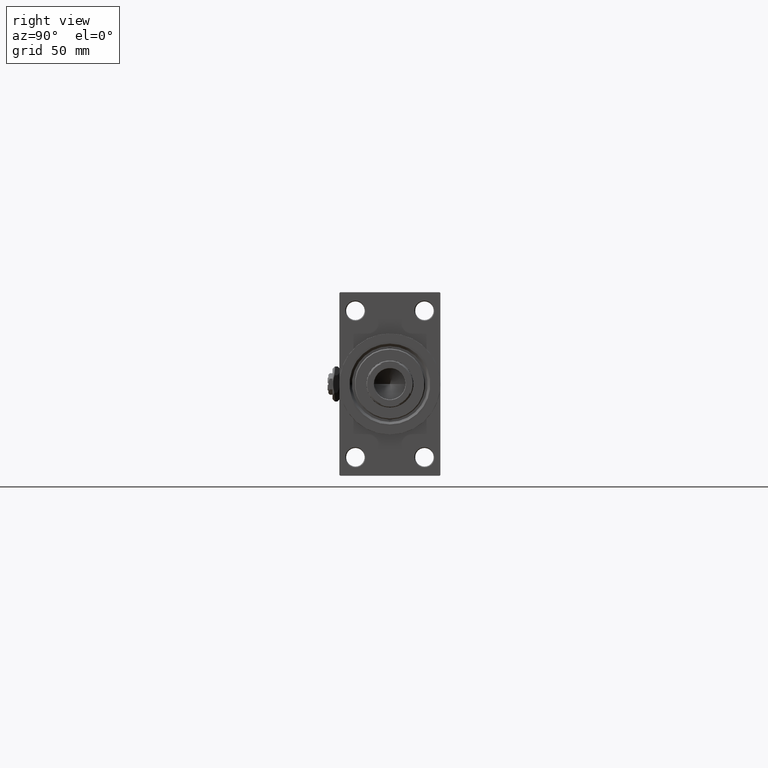
[diagram: clean part render]
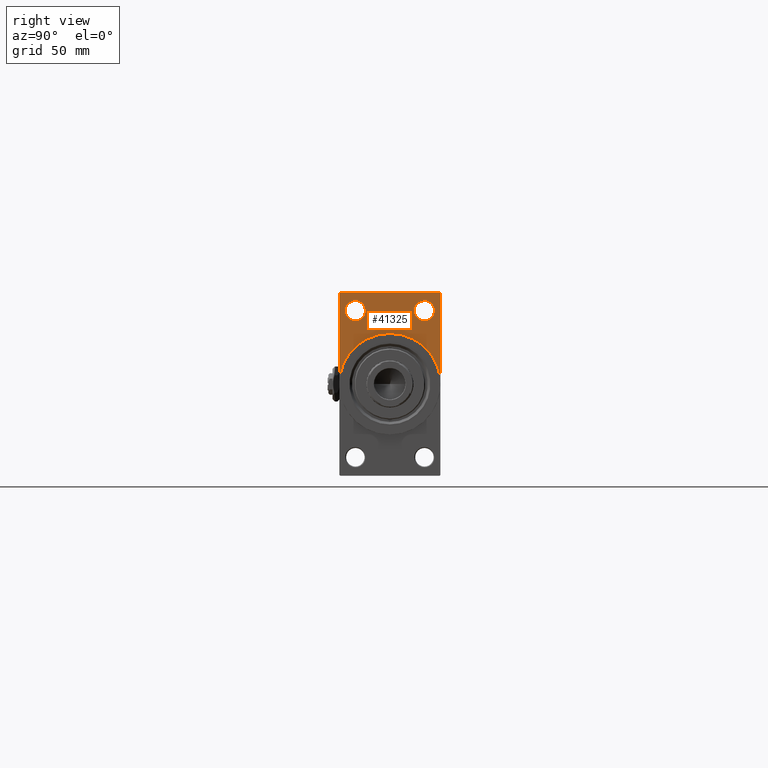
[diagram: same view with one face highlighted and labeled with its STEP entity id]
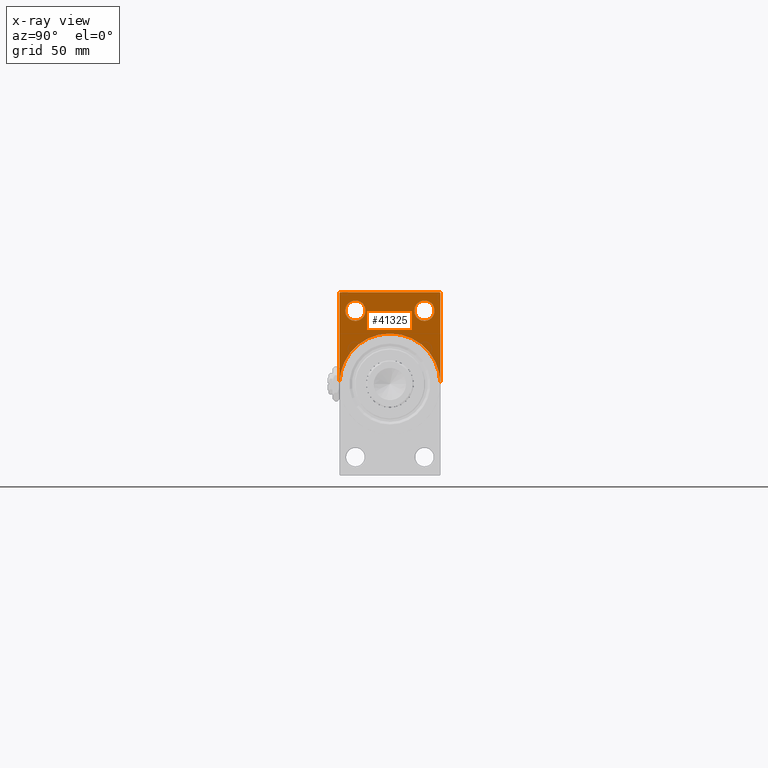
[diagram: x-ray of the same camera — body ghosted, the highlighted face saturated]
A machine part, right view. The second image highlights one B-rep face of the part: STEP entity #41325.
The next image is the same camera in x-ray: the body ghosted, the highlighted face saturated — about 0% of this face is hidden behind the body in this view.
In plain terms, the highlighted planar face has unit normal (-1, 0, 0).
Its self-contained STEP definition (entity closure, byte-faithful):
#342 = EDGE_CURVE ( 'NONE', #9525, #22201, #31948, .T. ) ;
#1118 = CARTESIAN_POINT ( 'NONE',  ( 367.9999999999999432, 0.000000000000000000, 0.000000000000000000 ) ) ;
#1385 = FACE_OUTER_BOUND ( 'NONE', #25868, .T. ) ;
#1732 = ORIENTED_EDGE ( 'NONE', *, *, #43860, .F. ) ;
#2413 = EDGE_CURVE ( 'NONE', #20217, #9525, #42579, .T. ) ;
#3683 = ORIENTED_EDGE ( 'NONE', *, *, #41834, .T. ) ;
#3729 = CARTESIAN_POINT ( 'NONE',  ( 367.9999999999999432, 29.99999999999999645, 54.49999999999999289 ) ) ;
#4058 = DIRECTION ( 'NONE',  ( 0.000000000000000000, 0.000000000000000000, -1.000000000000000000 ) ) ;
#4507 = CARTESIAN_POINT ( 'NONE',  ( 367.9999999999999432, 29.50000000000004974, 54.49999999999999289 ) ) ;
#4517 = CIRCLE ( 'NONE', #19607, 30.00000000000000000 ) ;
#5088 = CIRCLE ( 'NONE', #32915, 6.000000000000005329 ) ;
#6148 = AXIS2_PLACEMENT_3D ( 'NONE', #8846, #42985, #9571 ) ;
#6544 = EDGE_LOOP ( 'NONE', ( #16864, #22720 ) ) ;
#7142 = ORIENTED_EDGE ( 'NONE', *, *, #342, .T. ) ;
#7536 = DIRECTION ( 'NONE',  ( 0.000000000000000000, 0.000000000000000000, 1.000000000000000000 ) ) ;
#7552 = CARTESIAN_POINT ( 'NONE',  ( 367.9999999999999432, 0.000000000000000000, 0.000000000000000000 ) ) ;
#8109 = CARTESIAN_POINT ( 'NONE',  ( 367.9999999999999432, 0.000000000000000000, 30.00000000000000000 ) ) ;
#8546 = DIRECTION ( 'NONE',  ( 1.000000000000000000, 0.000000000000000000, 0.000000000000000000 ) ) ;
#8846 = CARTESIAN_POINT ( 'NONE',  ( 367.9999999999999432, 0.000000000000000000, 0.000000000000000000 ) ) ;
#9525 = VERTEX_POINT ( 'NONE', #34480 ) ;
#9571 = DIRECTION ( 'NONE',  ( -0.000000000000000000, 0.000000000000000000, 1.000000000000000000 ) ) ;
#9925 = ORIENTED_EDGE ( 'NONE', *, *, #20345, .T. ) ;
#11666 = VECTOR ( 'NONE', #20355, 1000.000000000000000 ) ;
#11897 = CARTESIAN_POINT ( 'NONE',  ( 367.9999999999999432, 29.50000000000004974, 54.49999999999999289 ) ) ;
#12025 = LINE ( 'NONE', #27225, #45605 ) ;
#12047 = DIRECTION ( 'NONE',  ( 0.000000000000000000, 0.000000000000000000, -1.000000000000000000 ) ) ;
#12698 = DIRECTION ( 'NONE',  ( 0.000000000000000000, 0.000000000000000000, 1.000000000000000000 ) ) ;
#12891 = AXIS2_PLACEMENT_3D ( 'NONE', #7552, #8546, #23240 ) ;
#13004 = CARTESIAN_POINT ( 'NONE',  ( 367.9999999999999432, -30.00000000000000000, 53.99999999999988631 ) ) ;
#13542 = AXIS2_PLACEMENT_3D ( 'NONE', #37138, #22666, #15193 ) ;
#15193 = DIRECTION ( 'NONE',  ( 0.000000000000000000, 0.000000000000000000, 1.000000000000000000 ) ) ;
#15498 = CARTESIAN_POINT ( 'NONE',  ( 367.9999999999999432, -30.00000000000000000, 54.50000000000000000 ) ) ;
#16130 = EDGE_CURVE ( 'NONE', #32096, #31419, #46110, .T. ) ;
#16263 = EDGE_CURVE ( 'NONE', #22201, #39570, #45646, .T. ) ;
#16486 = ORIENTED_EDGE ( 'NONE', *, *, #16130, .T. ) ;
#16864 = ORIENTED_EDGE ( 'NONE', *, *, #23936, .T. ) ;
#18015 = DIRECTION ( 'NONE',  ( -1.000000000000000000, 0.000000000000000000, -0.000000000000000000 ) ) ;
#18675 = ORIENTED_EDGE ( 'NONE', *, *, #47679, .F. ) ;
#19018 = ORIENTED_EDGE ( 'NONE', *, *, #27725, .F. ) ;
#19607 = AXIS2_PLACEMENT_3D ( 'NONE', #1118, #23773, #12047 ) ;
#19824 = CARTESIAN_POINT ( 'NONE',  ( 367.9999999999999432, 20.50000000000000000, 43.50000000000000000 ) ) ;
#20217 = VERTEX_POINT ( 'NONE', #4507 ) ;
#20345 = EDGE_CURVE ( 'NONE', #31419, #32096, #49249, .T. ) ;
#20355 = DIRECTION ( 'NONE',  ( 0.000000000000000000, -0.7071067811865081598, 0.7071067811865868746 ) ) ;
#22201 = VERTEX_POINT ( 'NONE', #47152 ) ;
#22429 = CIRCLE ( 'NONE', #12891, 30.00000000000000000 ) ;
#22666 = DIRECTION ( 'NONE',  ( -1.000000000000000000, 0.000000000000000000, -0.000000000000000000 ) ) ;
#22720 = ORIENTED_EDGE ( 'NONE', *, *, #34970, .T. ) ;
#23240 = DIRECTION ( 'NONE',  ( 0.000000000000000000, 0.000000000000000000, -1.000000000000000000 ) ) ;
#23448 = CARTESIAN_POINT ( 'NONE',  ( 367.9999999999999432, 29.99999999999999645, 53.99999999999999289 ) ) ;
#23773 = DIRECTION ( 'NONE',  ( 1.000000000000000000, 0.000000000000000000, 0.000000000000000000 ) ) ;
#23936 = EDGE_CURVE ( 'NONE', #39065, #38532, #35020, .T. ) ;
#24160 = CARTESIAN_POINT ( 'NONE',  ( 367.9999999999999432, -20.50000000000000000, 43.50000000000000000 ) ) ;
#24767 = PLANE ( 'NONE',  #6148 ) ;
#25506 = VECTOR ( 'NONE', #4058, 1000.000000000000000 ) ;
#25868 = EDGE_LOOP ( 'NONE', ( #37913, #7142, #26883, #1732, #19018, #18675, #3683 ) ) ;
#26883 = ORIENTED_EDGE ( 'NONE', *, *, #16263, .T. ) ;
#27225 = CARTESIAN_POINT ( 'NONE',  ( 367.9999999999999432, 29.99999999999999645, 54.49999999999999289 ) ) ;
#27725 = EDGE_CURVE ( 'NONE', #42773, #42191, #22429, .T. ) ;
#28275 = CARTESIAN_POINT ( 'NONE',  ( 367.9999999999999432, 30.00000000000000000, 0.000000000000000000 ) ) ;
#28360 = VECTOR ( 'NONE', #34590, 1000.000000000000000 ) ;
#29071 = EDGE_LOOP ( 'NONE', ( #16486, #9925 ) ) ;
#31419 = VERTEX_POINT ( 'NONE', #46976 ) ;
#31948 = LINE ( 'NONE', #13004, #38656 ) ;
#32096 = VERTEX_POINT ( 'NONE', #39855 ) ;
#32289 = CARTESIAN_POINT ( 'NONE',  ( 367.9999999999999432, 20.50000000000000000, 49.50000000000000000 ) ) ;
#32575 = VERTEX_POINT ( 'NONE', #23448 ) ;
#32915 = AXIS2_PLACEMENT_3D ( 'NONE', #19824, #38773, #35018 ) ;
#34480 = CARTESIAN_POINT ( 'NONE',  ( 367.9999999999999432, -29.49999999999994671, 54.50000000000000000 ) ) ;
#34530 = CARTESIAN_POINT ( 'NONE',  ( 367.9999999999999432, -30.00000000000000000, 0.000000000000000000 ) ) ;
#34590 = DIRECTION ( 'NONE',  ( 0.000000000000000000, -1.000000000000000000, 1.156482317317871478E-16 ) ) ;
#34970 = EDGE_CURVE ( 'NONE', #38532, #39065, #5088, .T. ) ;
#35018 = DIRECTION ( 'NONE',  ( 0.000000000000000000, 0.000000000000000000, 1.000000000000000000 ) ) ;
#35020 = CIRCLE ( 'NONE', #13542, 6.000000000000005329 ) ;
#35190 = DIRECTION ( 'NONE',  ( 0.000000000000000000, 0.000000000000000000, -1.000000000000000000 ) ) ;
#37138 = CARTESIAN_POINT ( 'NONE',  ( 367.9999999999999432, 20.50000000000000000, 43.50000000000000000 ) ) ;
#37913 = ORIENTED_EDGE ( 'NONE', *, *, #2413, .T. ) ;
#38532 = VERTEX_POINT ( 'NONE', #32289 ) ;
#38656 = VECTOR ( 'NONE', #43404, 1000.000000000000000 ) ;
#38773 = DIRECTION ( 'NONE',  ( -1.000000000000000000, 0.000000000000000000, -0.000000000000000000 ) ) ;
#38916 = AXIS2_PLACEMENT_3D ( 'NONE', #24160, #43330, #12698 ) ;
#39065 = VERTEX_POINT ( 'NONE', #39168 ) ;
#39168 = CARTESIAN_POINT ( 'NONE',  ( 367.9999999999999432, 20.50000000000000000, 37.49999999999999289 ) ) ;
#39570 = VERTEX_POINT ( 'NONE', #34530 ) ;
#39855 = CARTESIAN_POINT ( 'NONE',  ( 367.9999999999999432, -20.50000000000000000, 37.49999999999999289 ) ) ;
#41325 = ADVANCED_FACE ( 'NONE', ( #43708, #43955, #1385 ), #24767, .F. ) ;
#41420 = CARTESIAN_POINT ( 'NONE',  ( 367.9999999999999432, -20.50000000000000000, 43.50000000000000000 ) ) ;
#41834 = EDGE_CURVE ( 'NONE', #32575, #20217, #43049, .T. ) ;
#42191 = VERTEX_POINT ( 'NONE', #8109 ) ;
#42579 = LINE ( 'NONE', #3729, #28360 ) ;
#42773 = VERTEX_POINT ( 'NONE', #28275 ) ;
#42985 = DIRECTION ( 'NONE',  ( -1.000000000000000000, 0.000000000000000000, -0.000000000000000000 ) ) ;
#43049 = LINE ( 'NONE', #11897, #11666 ) ;
#43330 = DIRECTION ( 'NONE',  ( -1.000000000000000000, 0.000000000000000000, -0.000000000000000000 ) ) ;
#43404 = DIRECTION ( 'NONE',  ( -0.000000000000000000, -0.7071067811865058284, -0.7071067811865892061 ) ) ;
#43708 = FACE_BOUND ( 'NONE', #29071, .T. ) ;
#43860 = EDGE_CURVE ( 'NONE', #42191, #39570, #4517, .T. ) ;
#43955 = FACE_BOUND ( 'NONE', #6544, .T. ) ;
#45605 = VECTOR ( 'NONE', #35190, 1000.000000000000000 ) ;
#45646 = LINE ( 'NONE', #15498, #25506 ) ;
#46110 = CIRCLE ( 'NONE', #48486, 6.000000000000005329 ) ;
#46976 = CARTESIAN_POINT ( 'NONE',  ( 367.9999999999999432, -20.50000000000000000, 49.50000000000000000 ) ) ;
#47152 = CARTESIAN_POINT ( 'NONE',  ( 367.9999999999999432, -30.00000000000000000, 53.99999999999988631 ) ) ;
#47679 = EDGE_CURVE ( 'NONE', #32575, #42773, #12025, .T. ) ;
#48486 = AXIS2_PLACEMENT_3D ( 'NONE', #41420, #18015, #7536 ) ;
#49249 = CIRCLE ( 'NONE', #38916, 6.000000000000005329 ) ;